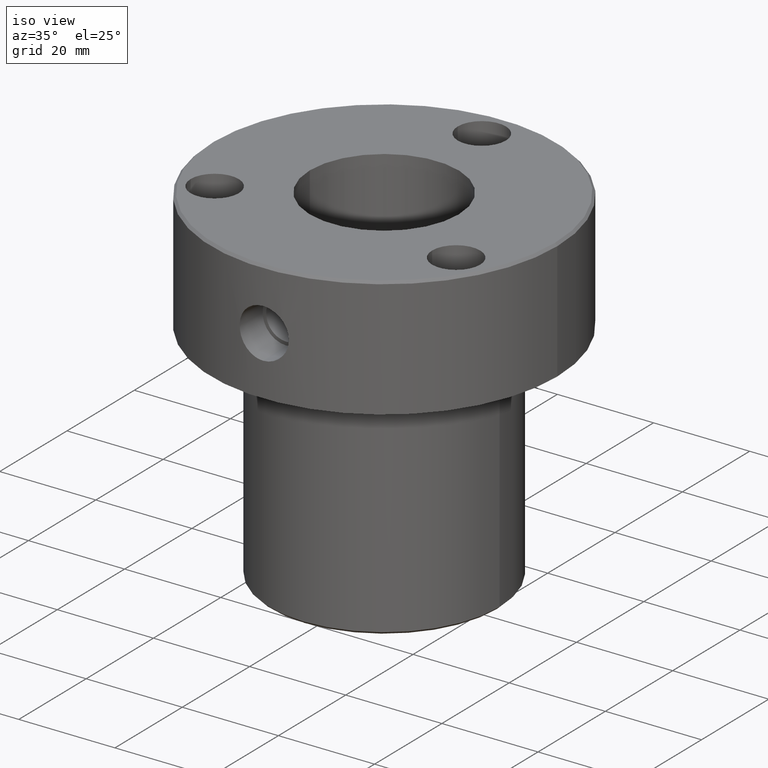
[diagram: clean part render]
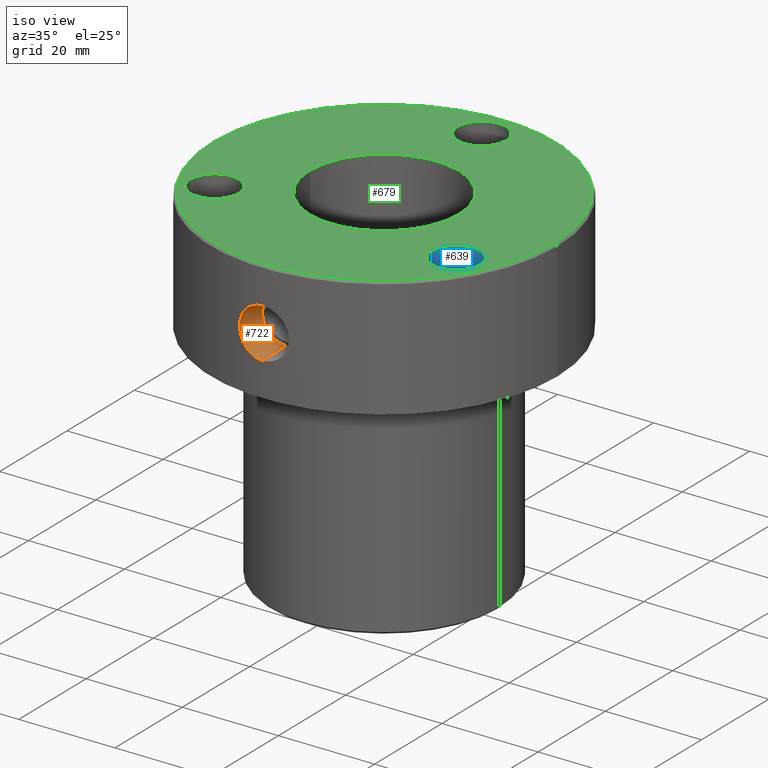
[diagram: same view with three faces highlighted in distinct colors, each labeled with its STEP entity id]
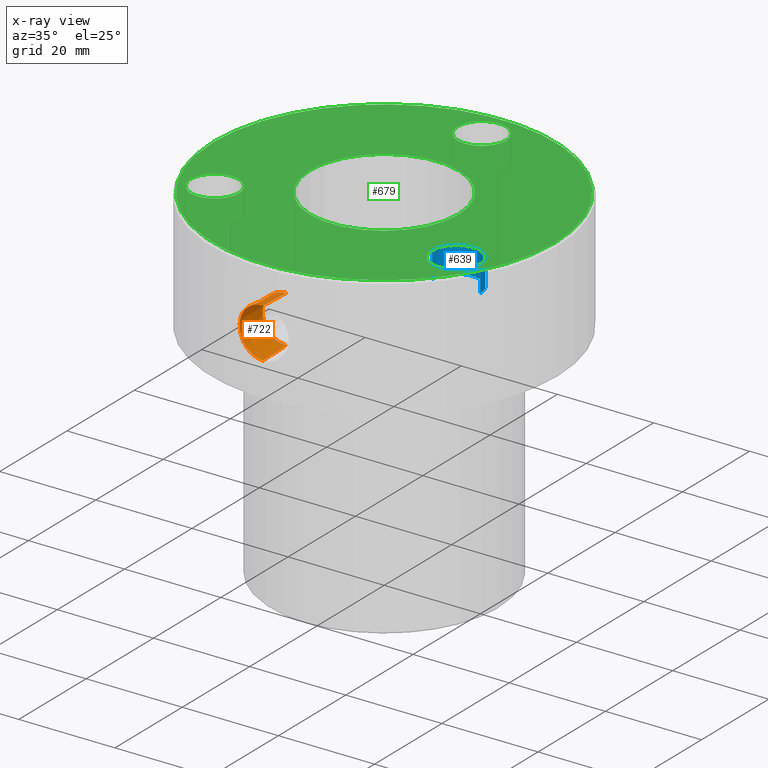
[diagram: x-ray of the same camera — body ghosted, the three highlighted faces saturated]
A machine part, iso view with three faces highlighted in distinct colors.
The next image is the same camera in x-ray (body ghosted, the three faces saturated) — at least one of them is partly hidden behind the body in this view.
Their STEP definitions:

[orange] entity #722 — the highlighted conical surface has half-angle 1.715 deg.
#17 = VERTEX_POINT ( 'NONE', #1015 ) ;
#37 = FACE_OUTER_BOUND ( 'NONE', #1009, .T. ) ;
#56 = LINE ( 'NONE', #277, #687 ) ;
#65 = CARTESIAN_POINT ( 'NONE',  ( -2.275587720639904443, -35.92934925681800706, -17.37244262154168339 ) ) ;
#84 = CARTESIAN_POINT ( 'NONE',  ( -1.334472260636662133, -35.97676177568234124, -7.772172400854750585 ) ) ;
#94 = CARTESIAN_POINT ( 'NONE',  ( 6.172785113075274999E-16, -29.08000000000000185, -7.813821067060064074 ) ) ;
#96 = VERTEX_POINT ( 'NONE', #1041 ) ;
#104 = CIRCLE ( 'NONE', #1012, 4.936178932939922603 ) ;
#144 = DIRECTION ( 'NONE',  ( 3.665114028111739322E-18, -0.9995520592605567911, 0.02992792722492342017 ) ) ;
#155 = CARTESIAN_POINT ( 'NONE',  ( -5.132480326373275226, -35.63225569218960942, -13.08318454073698511 ) ) ;
#162 = CARTESIAN_POINT ( 'NONE',  ( -3.867744682383481347, -35.79242907306673516, -16.14777688475753337 ) ) ;
#222 = ORIENTED_EDGE ( 'NONE', *, *, #1125, .F. ) ;
#250 = DIRECTION ( 'NONE',  ( 0.000000000000000000, 0.000000000000000000, -1.000000000000000000 ) ) ;
#254 = CARTESIAN_POINT ( 'NONE',  ( -4.615790708340534287, -35.70309573215841681, -15.02364172483657256 ) ) ;
#259 = CARTESIAN_POINT ( 'NONE',  ( -4.870061513962859578, -35.66930335032450472, -11.09241811007563072 ) ) ;
#263 = CARTESIAN_POINT ( 'NONE',  ( -0.8401113678963481046, -35.99057497138012707, -17.82680413233868322 ) ) ;
#267 = CARTESIAN_POINT ( 'NONE',  ( -5.091049653408040498, -35.63820270606292695, -12.07721189375376447 ) ) ;
#277 = CARTESIAN_POINT ( 'NONE',  ( 0.000000000000000000, -36.00000000000000000, -17.89337299999998621 ) ) ;
#345 = CARTESIAN_POINT ( 'NONE',  ( -4.082279283164364614, -35.76828787354437367, -15.88554681719237038 ) ) ;
#348 = CARTESIAN_POINT ( 'NONE',  ( -3.132282132631538207, -35.86455603857671548, -8.661827584422121973 ) ) ;
#361 = CARTESIAN_POINT ( 'NONE',  ( -3.869813446050350159, -35.79220196518004826, -9.354639173738936719 ) ) ;
#368 = CARTESIAN_POINT ( 'NONE',  ( -2.279323674699770486, -35.92913036428053886, -8.129239255269382625 ) ) ;
#413 = CARTESIAN_POINT ( 'NONE',  ( 6.298815281270918744E-16, -36.00000000000000000, -7.606626999999987149 ) ) ;
#415 = CARTESIAN_POINT ( 'NONE',  ( 0.000000000000000000, -36.00000000000000000, -12.74999999999998757 ) ) ;
#448 = CARTESIAN_POINT ( 'NONE',  ( -5.132303483038378467, -35.63228116415699986, -12.58068670786477483 ) ) ;
#451 = EDGE_CURVE ( 'NONE', #915, #17, #104, .T. ) ;
#463 = CARTESIAN_POINT ( 'NONE',  ( -1.655426372826040105, -35.96325904331931156, -17.63009013256227320 ) ) ;
#469 = CARTESIAN_POINT ( 'NONE',  ( -4.870985339044030304, -35.66917535561609043, -14.40470360826312657 ) ) ;
#492 = CARTESIAN_POINT ( 'NONE',  ( 0.000000000000000000, -29.08000000000000185, -12.74999999999998757 ) ) ;
#528 = EDGE_CURVE ( 'NONE', #915, #1151, #1134, .T. ) ;
#545 = CARTESIAN_POINT ( 'NONE',  ( -3.390904222931096612, -35.84074771024629769, -16.62568980151061382 ) ) ;
#572 = DIRECTION ( 'NONE',  ( -0.000000000000000000, -1.000000000000000000, -0.000000000000000000 ) ) ;
#574 = DIRECTION ( 'NONE',  ( -0.000000000000000000, -1.000000000000000000, -0.000000000000000000 ) ) ;
#577 = ORIENTED_EDGE ( 'NONE', *, *, #808, .T. ) ;
#596 = ORIENTED_EDGE ( 'NONE', *, *, #528, .T. ) ;
#636 = CARTESIAN_POINT ( 'NONE',  ( -4.967239168825848594, -35.65572824311934852, -11.41264983495981333 ) ) ;
#642 = CONICAL_SURFACE ( 'NONE', #1227, 5.143372999999999529, 0.02993239667170296756 ) ;
#652 = CARTESIAN_POINT ( 'NONE',  ( -5.124100043890623013, -35.63346569493480587, -12.41299369725978963 ) ) ;
#660 = CARTESIAN_POINT ( 'NONE',  ( -1.655037379787138496, -35.96329484931852960, -7.869619187362687285 ) ) ;
#668 = CARTESIAN_POINT ( 'NONE',  ( -0.1675429042383714540, -36.00000000000000711, -17.89337299999999331 ) ) ;
#687 = VECTOR ( 'NONE', #1242, 1000.000000000000227 ) ;
#707 = VECTOR ( 'NONE', #144, 1000.000000000000227 ) ;
#722 = ADVANCED_FACE ( 'NONE', ( #37 ), #642, .F. ) ;
#727 = CARTESIAN_POINT ( 'NONE',  ( -4.968358492892852141, -35.65557240957834750, -14.08375826072354720 ) ) ;
#733 = CARTESIAN_POINT ( 'NONE',  ( -3.394016580218661261, -35.84044962157522463, -8.877090623383150358 ) ) ;
#746 = CARTESIAN_POINT ( 'NONE',  ( -4.081358766602609656, -35.76838717605889428, -9.613498045051994012 ) ) ;
#752 = CARTESIAN_POINT ( 'NONE',  ( -2.577004002287619056, -35.90872625943177354, -8.289395687327473894 ) ) ;
#776 = B_SPLINE_CURVE_WITH_KNOTS ( 'NONE', 3,
 ( #1239, #1127, #968, #84, #660, #368, #752, #348, #733, #361, #746, #1060, #1146, #259, #636, #1251, #267, #652, #448, #155, #1051, #727, #469, #254, #1153, #345, #162, #545, #1137, #946, #65, #463, #841, #263, #855, #886, #668, #1253 ),
 .UNSPECIFIED., .F., .F.,
 ( 4, 2, 2, 2, 2, 2, 2, 2, 2, 2, 2, 2, 2, 2, 2, 2, 2, 2, 4 ),
 ( 0.02023265630584750174, 0.02123748081429662621, 0.02224230532274575414, 0.02324712983119488208, 0.02425195433964400654, 0.02525677884809313448, 0.02626160335654226241, 0.02726642786499138688, 0.02776884011921594911, 0.02827125237344051134, 0.02927607688188963581, 0.03028090139033876027, 0.03128572589878789167, 0.03229055040723700920, 0.03329537491568613367, 0.03430019942413525813, 0.03530502393258437566, 0.03580743618680894136, 0.03630984844103350012 ),
 .UNSPECIFIED. ) ;
#808 = EDGE_CURVE ( 'NONE', #1151, #96, #776, .T. ) ;
#841 = CARTESIAN_POINT ( 'NONE',  ( -1.335362368965270274, -35.97674113740099955, -17.72768090413853415 ) ) ;
#855 = CARTESIAN_POINT ( 'NONE',  ( -0.6715231242244814602, -35.99412889237471092, -17.85196652225037539 ) ) ;
#886 = CARTESIAN_POINT ( 'NONE',  ( -0.3353535181282963351, -35.99883048162996602, -17.88517202957152108 ) ) ;
#915 = VERTEX_POINT ( 'NONE', #94 ) ;
#946 = CARTESIAN_POINT ( 'NONE',  ( -2.576638186247376172, -35.90875484596557499, -17.21084344985863979 ) ) ;
#968 = CARTESIAN_POINT ( 'NONE',  ( -0.6768412377640536937, -35.99513981105601346, -7.640486352620248667 ) ) ;
#973 = DIRECTION ( 'NONE',  ( 0.000000000000000000, 0.000000000000000000, -1.000000000000000000 ) ) ;
#1009 = EDGE_LOOP ( 'NONE', ( #1120, #596, #577, #222 ) ) ;
#1012 = AXIS2_PLACEMENT_3D ( 'NONE', #492, #572, #973 ) ;
#1015 = CARTESIAN_POINT ( 'NONE',  ( 0.000000000000000000, -29.08000000000000185, -17.68617893293991017 ) ) ;
#1020 = CARTESIAN_POINT ( 'NONE',  ( 6.298815282759539701E-16, -36.00000000000000000, -7.606626999999987149 ) ) ;
#1041 = CARTESIAN_POINT ( 'NONE',  ( 3.571817028434180789E-21, -36.00000000000000000, -17.89337299999998621 ) ) ;
#1051 = CARTESIAN_POINT ( 'NONE',  ( -5.100166516558003238, -35.63695738235751520, -13.41789004543118402 ) ) ;
#1060 = CARTESIAN_POINT ( 'NONE',  ( -4.452942759247334514, -35.72402988663296242, -10.17069915215211573 ) ) ;
#1120 = ORIENTED_EDGE ( 'NONE', *, *, #451, .F. ) ;
#1125 = EDGE_CURVE ( 'NONE', #17, #96, #56, .T. ) ;
#1127 = CARTESIAN_POINT ( 'NONE',  ( -0.3361067275072111560, -36.00000000000001421, -7.606626999999983596 ) ) ;
#1134 = LINE ( 'NONE', #413, #707 ) ;
#1137 = CARTESIAN_POINT ( 'NONE',  ( -3.132516396897012001, -35.86453791635487676, -16.83802151031922989 ) ) ;
#1146 = CARTESIAN_POINT ( 'NONE',  ( -4.613851569483705894, -35.70334822312924672, -10.47230001879731631 ) ) ;
#1151 = VERTEX_POINT ( 'NONE', #1020 ) ;
#1153 = CARTESIAN_POINT ( 'NONE',  ( -4.456035437276217870, -35.72365000573475413, -15.32423349465898177 ) ) ;
#1227 = AXIS2_PLACEMENT_3D ( 'NONE', #415, #574, #250 ) ;
#1239 = CARTESIAN_POINT ( 'NONE',  ( 6.298815282759539701E-16, -36.00000000000000000, -7.606626999999987149 ) ) ;
#1242 = DIRECTION ( 'NONE',  ( 0.000000000000000000, -0.9995520592605567911, -0.02992792722492342017 ) ) ;
#1251 = CARTESIAN_POINT ( 'NONE',  ( -5.066001198085445800, -35.64178358665389368, -11.90850973993781992 ) ) ;
#1253 = CARTESIAN_POINT ( 'NONE',  ( 3.571817028434180789E-21, -36.00000000000000000, -17.89337299999998621 ) ) ;

[blue] entity #639 — the highlighted cylindrical surface (edge-blend (fillet) strip) has radius 5 mm, axis along (-0, -0, 1).
#35 = DIRECTION ( 'NONE',  ( -0.000000000000000000, -0.000000000000000000, 1.000000000000000000 ) ) ;
#55 = DIRECTION ( 'NONE',  ( -0.000000000000000000, -0.000000000000000000, 1.000000000000000000 ) ) ;
#61 = CARTESIAN_POINT ( 'NONE',  ( 20.11473670974865513, -14.50000000000011013, 0.000000000000000000 ) ) ;
#62 = EDGE_CURVE ( 'NONE', #473, #1040, #607, .T. ) ;
#156 = DIRECTION ( 'NONE',  ( 1.000000000000000000, 0.000000000000000000, 0.000000000000000000 ) ) ;
#174 = DIRECTION ( 'NONE',  ( 1.000000000000000000, 0.000000000000000000, 0.000000000000000000 ) ) ;
#208 = CIRCLE ( 'NONE', #540, 5.000000000000000888 ) ;
#240 = EDGE_CURVE ( 'NONE', #311, #571, #208, .T. ) ;
#298 = LINE ( 'NONE', #693, #623 ) ;
#311 = VERTEX_POINT ( 'NONE', #1241 ) ;
#318 = EDGE_LOOP ( 'NONE', ( #845, #344, #387, #616 ) ) ;
#341 = CARTESIAN_POINT ( 'NONE',  ( 20.11473670974865513, -14.50000000000011013, 0.000000000000000000 ) ) ;
#344 = ORIENTED_EDGE ( 'NONE', *, *, #62, .F. ) ;
#352 = LINE ( 'NONE', #61, #770 ) ;
#387 = ORIENTED_EDGE ( 'NONE', *, *, #432, .T. ) ;
#390 = CARTESIAN_POINT ( 'NONE',  ( 30.11473670974865868, -14.50000000000011013, -5.400000000000000355 ) ) ;
#423 = AXIS2_PLACEMENT_3D ( 'NONE', #455, #938, #156 ) ;
#432 = EDGE_CURVE ( 'NONE', #473, #311, #298, .T. ) ;
#455 = CARTESIAN_POINT ( 'NONE',  ( 25.11473670974865868, -14.50000000000011013, -5.400000000000000355 ) ) ;
#473 = VERTEX_POINT ( 'NONE', #390 ) ;
#540 = AXIS2_PLACEMENT_3D ( 'NONE', #650, #55, #174 ) ;
#555 = DIRECTION ( 'NONE',  ( -0.000000000000000000, -0.000000000000000000, 1.000000000000000000 ) ) ;
#571 = VERTEX_POINT ( 'NONE', #341 ) ;
#607 = CIRCLE ( 'NONE', #423, 5.000000000000000888 ) ;
#616 = ORIENTED_EDGE ( 'NONE', *, *, #240, .T. ) ;
#623 = VECTOR ( 'NONE', #667, 1000.000000000000000 ) ;
#639 = ADVANCED_FACE ( 'NONE', ( #643 ), #1043, .F. ) ;
#643 = FACE_OUTER_BOUND ( 'NONE', #318, .T. ) ;
#650 = CARTESIAN_POINT ( 'NONE',  ( 25.11473670974865868, -14.50000000000011013, 0.000000000000000000 ) ) ;
#667 = DIRECTION ( 'NONE',  ( -0.000000000000000000, -0.000000000000000000, 1.000000000000000000 ) ) ;
#693 = CARTESIAN_POINT ( 'NONE',  ( 30.11473670974865868, -14.50000000000011013, 0.000000000000000000 ) ) ;
#770 = VECTOR ( 'NONE', #555, 1000.000000000000000 ) ;
#789 = EDGE_CURVE ( 'NONE', #1040, #571, #352, .T. ) ;
#804 = DIRECTION ( 'NONE',  ( 1.000000000000000000, 0.000000000000000000, 0.000000000000000000 ) ) ;
#845 = ORIENTED_EDGE ( 'NONE', *, *, #789, .F. ) ;
#898 = CARTESIAN_POINT ( 'NONE',  ( 25.11473670974865868, -14.50000000000011013, 0.000000000000000000 ) ) ;
#918 = AXIS2_PLACEMENT_3D ( 'NONE', #898, #35, #804 ) ;
#938 = DIRECTION ( 'NONE',  ( -0.000000000000000000, -0.000000000000000000, 1.000000000000000000 ) ) ;
#1022 = CARTESIAN_POINT ( 'NONE',  ( 20.11473670974865513, -14.50000000000011013, -5.400000000000000355 ) ) ;
#1040 = VERTEX_POINT ( 'NONE', #1022 ) ;
#1043 = CYLINDRICAL_SURFACE ( 'NONE', #918, 5.000000000000000888 ) ;
#1241 = CARTESIAN_POINT ( 'NONE',  ( 30.11473670974865868, -14.50000000000011013, 0.000000000000000000 ) ) ;

[green] entity #679 — the highlighted planar face has unit normal (0, -0, 1).
#11 = CARTESIAN_POINT ( 'NONE',  ( 0.000000000000000000, 0.000000000000000000, 0.000000000000000000 ) ) ;
#27 = ORIENTED_EDGE ( 'NONE', *, *, #1031, .F. ) ;
#53 = CARTESIAN_POINT ( 'NONE',  ( 25.11473670974865868, -14.50000000000011013, 0.000000000000000000 ) ) ;
#55 = DIRECTION ( 'NONE',  ( -0.000000000000000000, -0.000000000000000000, 1.000000000000000000 ) ) ;
#59 = EDGE_LOOP ( 'NONE', ( #963, #27 ) ) ;
#75 = EDGE_LOOP ( 'NONE', ( #119, #1102 ) ) ;
#92 = VERTEX_POINT ( 'NONE', #349 ) ;
#98 = VERTEX_POINT ( 'NONE', #856 ) ;
#108 = VERTEX_POINT ( 'NONE', #1073 ) ;
#119 = ORIENTED_EDGE ( 'NONE', *, *, #427, .F. ) ;
#123 = DIRECTION ( 'NONE',  ( -0.000000000000000000, -0.000000000000000000, 1.000000000000000000 ) ) ;
#129 = CIRCLE ( 'NONE', #644, 5.000000000000000888 ) ;
#141 = DIRECTION ( 'NONE',  ( -0.000000000000000000, -0.000000000000000000, 1.000000000000000000 ) ) ;
#143 = CIRCLE ( 'NONE', #1122, 35.50000000000001421 ) ;
#158 = CIRCLE ( 'NONE', #704, 35.50000000000001421 ) ;
#165 = CARTESIAN_POINT ( 'NONE',  ( 0.000000000000000000, 0.000000000000000000, 0.000000000000000000 ) ) ;
#174 = DIRECTION ( 'NONE',  ( 1.000000000000000000, 0.000000000000000000, 0.000000000000000000 ) ) ;
#192 = ORIENTED_EDGE ( 'NONE', *, *, #317, .T. ) ;
#201 = CARTESIAN_POINT ( 'NONE',  ( 0.000000000000000000, 0.000000000000000000, 0.000000000000000000 ) ) ;
#202 = EDGE_CURVE ( 'NONE', #92, #108, #143, .T. ) ;
#208 = CIRCLE ( 'NONE', #540, 5.000000000000000888 ) ;
#217 = DIRECTION ( 'NONE',  ( 1.000000000000000000, 0.000000000000000000, 0.000000000000000000 ) ) ;
#223 = DIRECTION ( 'NONE',  ( -0.000000000000000000, -0.000000000000000000, 1.000000000000000000 ) ) ;
#224 = DIRECTION ( 'NONE',  ( 1.000000000000000000, 0.000000000000000000, 0.000000000000000000 ) ) ;
#227 = ORIENTED_EDGE ( 'NONE', *, *, #818, .T. ) ;
#229 = VERTEX_POINT ( 'NONE', #265 ) ;
#231 = CARTESIAN_POINT ( 'NONE',  ( -25.11473670974875105, -14.49999999999994316, 0.000000000000000000 ) ) ;
#238 = DIRECTION ( 'NONE',  ( -0.000000000000000000, -0.000000000000000000, 1.000000000000000000 ) ) ;
#240 = EDGE_CURVE ( 'NONE', #311, #571, #208, .T. ) ;
#265 = CARTESIAN_POINT ( 'NONE',  ( 5.000000000000000888, 29.00000000000000000, 0.000000000000000000 ) ) ;
#282 = DIRECTION ( 'NONE',  ( 1.000000000000000000, 0.000000000000000000, 0.000000000000000000 ) ) ;
#304 = CARTESIAN_POINT ( 'NONE',  ( -25.11473670974875105, -14.49999999999994316, 0.000000000000000000 ) ) ;
#311 = VERTEX_POINT ( 'NONE', #1241 ) ;
#317 = EDGE_CURVE ( 'NONE', #320, #936, #1106, .T. ) ;
#320 = VERTEX_POINT ( 'NONE', #837 ) ;
#326 = AXIS2_PLACEMENT_3D ( 'NONE', #231, #141, #912 ) ;
#328 = CARTESIAN_POINT ( 'NONE',  ( 0.000000000000000000, 29.00000000000000000, 0.000000000000000000 ) ) ;
#341 = CARTESIAN_POINT ( 'NONE',  ( 20.11473670974865513, -14.50000000000011013, 0.000000000000000000 ) ) ;
#346 = EDGE_CURVE ( 'NONE', #108, #92, #158, .T. ) ;
#349 = CARTESIAN_POINT ( 'NONE',  ( -35.50000000000001421, 0.000000000000000000, 0.000000000000000000 ) ) ;
#359 = VERTEX_POINT ( 'NONE', #1083 ) ;
#410 = VERTEX_POINT ( 'NONE', #773 ) ;
#427 = EDGE_CURVE ( 'NONE', #359, #98, #641, .T. ) ;
#457 = AXIS2_PLACEMENT_3D ( 'NONE', #165, #756, #654 ) ;
#487 = CARTESIAN_POINT ( 'NONE',  ( 0.000000000000000000, 0.000000000000000000, 0.000000000000000000 ) ) ;
#526 = AXIS2_PLACEMENT_3D ( 'NONE', #53, #1030, #627 ) ;
#540 = AXIS2_PLACEMENT_3D ( 'NONE', #650, #55, #174 ) ;
#542 = AXIS2_PLACEMENT_3D ( 'NONE', #201, #880, #556 ) ;
#544 = DIRECTION ( 'NONE',  ( -0.000000000000000000, -0.000000000000000000, 1.000000000000000000 ) ) ;
#546 = EDGE_CURVE ( 'NONE', #571, #311, #723, .T. ) ;
#548 = CARTESIAN_POINT ( 'NONE',  ( 0.000000000000000000, 0.000000000000000000, 0.000000000000000000 ) ) ;
#556 = DIRECTION ( 'NONE',  ( -1.000000000000000000, 0.000000000000000000, 0.000000000000000000 ) ) ;
#571 = VERTEX_POINT ( 'NONE', #341 ) ;
#627 = DIRECTION ( 'NONE',  ( 1.000000000000000000, 0.000000000000000000, 0.000000000000000000 ) ) ;
#641 = CIRCLE ( 'NONE', #682, 5.000000000000000888 ) ;
#644 = AXIS2_PLACEMENT_3D ( 'NONE', #1099, #123, #224 ) ;
#649 = ORIENTED_EDGE ( 'NONE', *, *, #202, .T. ) ;
#650 = CARTESIAN_POINT ( 'NONE',  ( 25.11473670974865868, -14.50000000000011013, 0.000000000000000000 ) ) ;
#651 = EDGE_LOOP ( 'NONE', ( #192, #227 ) ) ;
#654 = DIRECTION ( 'NONE',  ( -1.000000000000000000, 0.000000000000000000, 0.000000000000000000 ) ) ;
#674 = PLANE ( 'NONE',  #1160 ) ;
#679 = ADVANCED_FACE ( 'NONE', ( #806, #1085, #871, #1201, #1005 ), #674, .T. ) ;
#682 = AXIS2_PLACEMENT_3D ( 'NONE', #304, #684, #282 ) ;
#684 = DIRECTION ( 'NONE',  ( -0.000000000000000000, -0.000000000000000000, 1.000000000000000000 ) ) ;
#692 = EDGE_LOOP ( 'NONE', ( #1100, #865 ) ) ;
#704 = AXIS2_PLACEMENT_3D ( 'NONE', #487, #223, #1158 ) ;
#710 = DIRECTION ( 'NONE',  ( 1.000000000000000000, 0.000000000000000000, 0.000000000000000000 ) ) ;
#723 = CIRCLE ( 'NONE', #526, 5.000000000000000888 ) ;
#756 = DIRECTION ( 'NONE',  ( 0.000000000000000000, 0.000000000000000000, -1.000000000000000000 ) ) ;
#773 = CARTESIAN_POINT ( 'NONE',  ( -5.000000000000000888, 29.00000000000000000, 0.000000000000000000 ) ) ;
#806 = FACE_BOUND ( 'NONE', #75, .T. ) ;
#811 = CARTESIAN_POINT ( 'NONE',  ( 15.50000000000000000, 1.898202538678397557E-15, 0.000000000000000000 ) ) ;
#814 = AXIS2_PLACEMENT_3D ( 'NONE', #328, #238, #710 ) ;
#818 = EDGE_CURVE ( 'NONE', #936, #320, #1109, .T. ) ;
#837 = CARTESIAN_POINT ( 'NONE',  ( -15.50000000000000000, 0.000000000000000000, 0.000000000000000000 ) ) ;
#856 = CARTESIAN_POINT ( 'NONE',  ( -30.11473670974875105, -14.49999999999994316, 0.000000000000000000 ) ) ;
#865 = ORIENTED_EDGE ( 'NONE', *, *, #546, .F. ) ;
#871 = FACE_BOUND ( 'NONE', #59, .T. ) ;
#880 = DIRECTION ( 'NONE',  ( 0.000000000000000000, 0.000000000000000000, -1.000000000000000000 ) ) ;
#885 = ORIENTED_EDGE ( 'NONE', *, *, #346, .T. ) ;
#889 = EDGE_LOOP ( 'NONE', ( #649, #885 ) ) ;
#912 = DIRECTION ( 'NONE',  ( 1.000000000000000000, 0.000000000000000000, 0.000000000000000000 ) ) ;
#936 = VERTEX_POINT ( 'NONE', #811 ) ;
#949 = DIRECTION ( 'NONE',  ( 1.000000000000000000, 0.000000000000000000, 0.000000000000000000 ) ) ;
#963 = ORIENTED_EDGE ( 'NONE', *, *, #995, .F. ) ;
#995 = EDGE_CURVE ( 'NONE', #229, #410, #129, .T. ) ;
#1005 = FACE_OUTER_BOUND ( 'NONE', #889, .T. ) ;
#1030 = DIRECTION ( 'NONE',  ( -0.000000000000000000, -0.000000000000000000, 1.000000000000000000 ) ) ;
#1031 = EDGE_CURVE ( 'NONE', #410, #229, #1247, .T. ) ;
#1073 = CARTESIAN_POINT ( 'NONE',  ( 35.50000000000001421, 4.378112306951788646E-15, 0.000000000000000000 ) ) ;
#1083 = CARTESIAN_POINT ( 'NONE',  ( -20.11473670974875105, -14.49999999999994316, 0.000000000000000000 ) ) ;
#1085 = FACE_BOUND ( 'NONE', #692, .T. ) ;
#1095 = DIRECTION ( 'NONE',  ( 0.000000000000000000, -0.000000000000000000, 1.000000000000000000 ) ) ;
#1099 = CARTESIAN_POINT ( 'NONE',  ( 0.000000000000000000, 29.00000000000000000, 0.000000000000000000 ) ) ;
#1100 = ORIENTED_EDGE ( 'NONE', *, *, #240, .F. ) ;
#1102 = ORIENTED_EDGE ( 'NONE', *, *, #1185, .F. ) ;
#1106 = CIRCLE ( 'NONE', #457, 15.50000000000000000 ) ;
#1109 = CIRCLE ( 'NONE', #542, 15.50000000000000000 ) ;
#1122 = AXIS2_PLACEMENT_3D ( 'NONE', #548, #544, #949 ) ;
#1124 = CIRCLE ( 'NONE', #326, 5.000000000000000888 ) ;
#1158 = DIRECTION ( 'NONE',  ( 1.000000000000000000, 0.000000000000000000, 0.000000000000000000 ) ) ;
#1160 = AXIS2_PLACEMENT_3D ( 'NONE', #11, #1095, #217 ) ;
#1185 = EDGE_CURVE ( 'NONE', #98, #359, #1124, .T. ) ;
#1201 = FACE_BOUND ( 'NONE', #651, .T. ) ;
#1241 = CARTESIAN_POINT ( 'NONE',  ( 30.11473670974865868, -14.50000000000011013, 0.000000000000000000 ) ) ;
#1247 = CIRCLE ( 'NONE', #814, 5.000000000000000888 ) ;